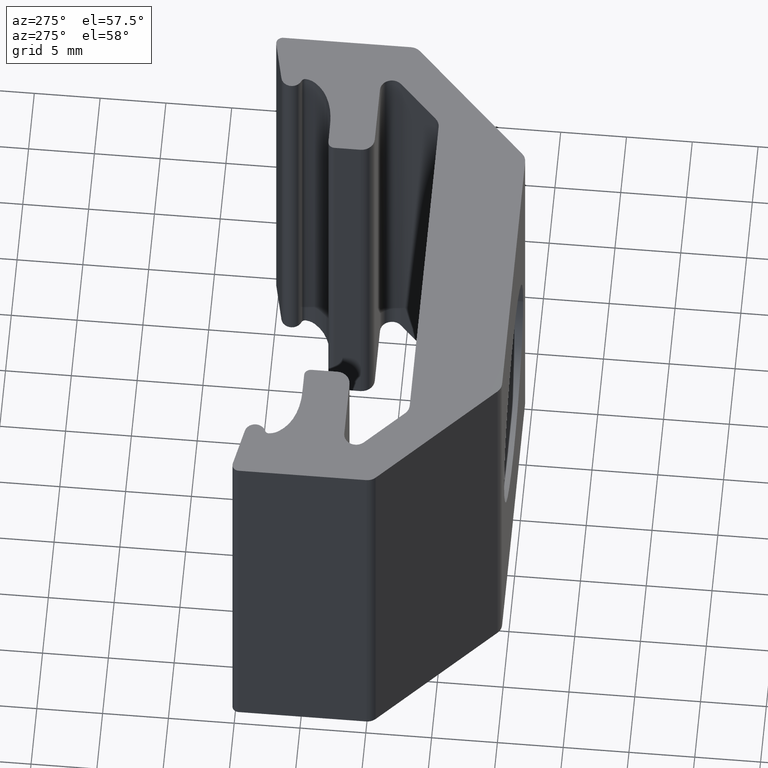
[diagram: clean part render]
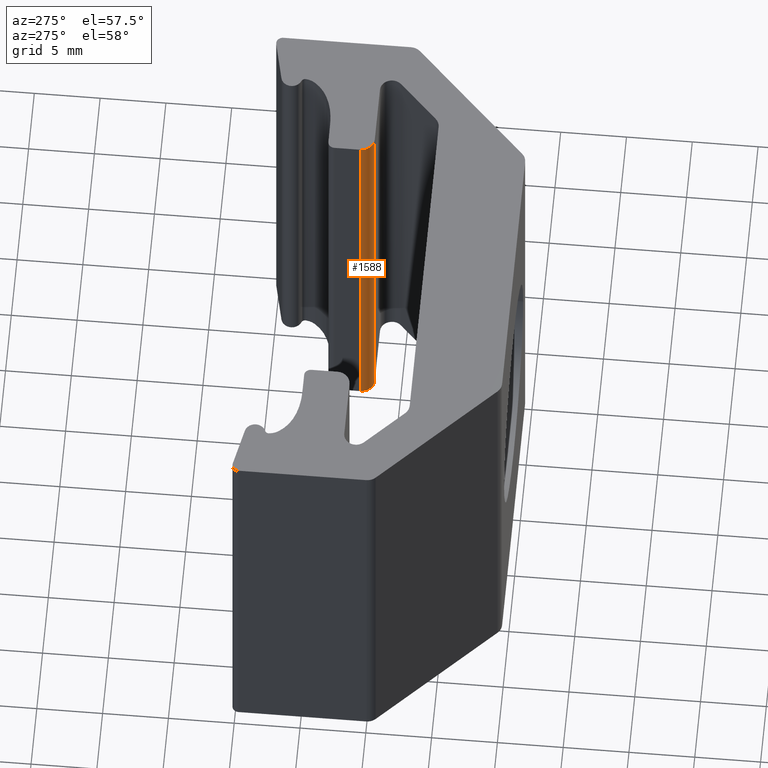
[diagram: same view with one face highlighted and labeled with its STEP entity id]
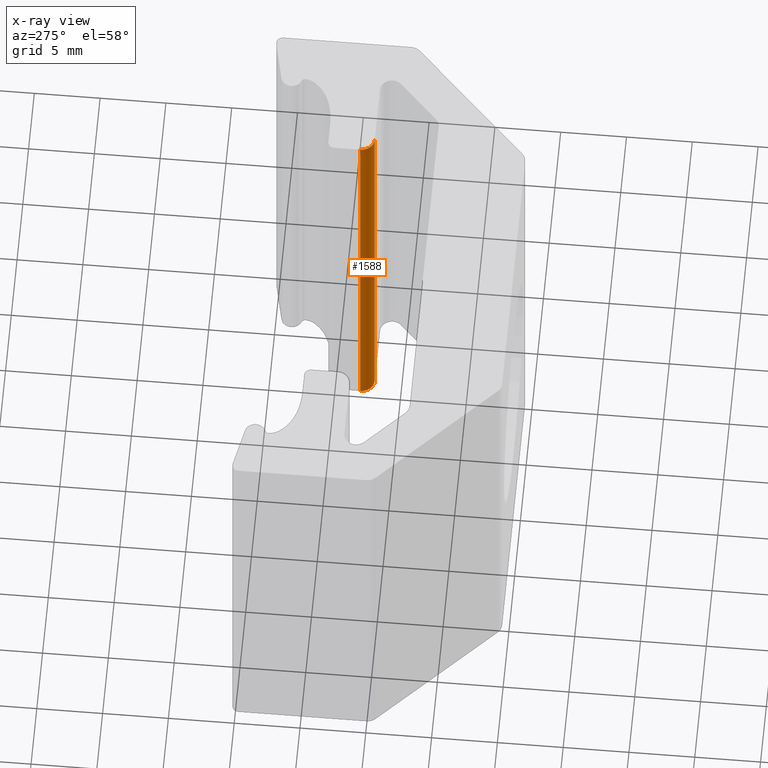
[diagram: x-ray of the same camera — body ghosted, the highlighted face saturated]
A machine part, auxiliary view. The second image highlights one B-rep face of the part: STEP entity #1588.
The next image is the same camera in x-ray: the body ghosted, the highlighted face saturated — about 0% of this face is hidden behind the body in this view.
In plain terms, the highlighted cylindrical surface (edge-blend (fillet) strip) has radius 1 mm, axis along (0, 0, 1).
Its self-contained STEP definition (entity closure, byte-faithful):
#34 = VERTEX_POINT ( 'NONE', #37 ) ;
#37 = CARTESIAN_POINT ( 'NONE',  ( 9.999999999997999822, 2.967902201490478564, 17.00000000000005684 ) ) ;
#46 = VECTOR ( 'NONE', #497, 1000.000000000000000 ) ;
#60 = CARTESIAN_POINT ( 'NONE',  ( 11.00000000001899991, 2.967902201490478564, -16.99999999999994671 ) ) ;
#70 = DIRECTION ( 'NONE',  ( 7.000000000000000347E-17, 1.580000000000000036E-15, 1.000000000000000000 ) ) ;
#203 = CARTESIAN_POINT ( 'NONE',  ( 9.999999999962998487, 2.967902201490478564, -16.99999999999994671 ) ) ;
#272 = CARTESIAN_POINT ( 'NONE',  ( 9.999999999962998487, 2.967902201490478564, 17.00000000000005684 ) ) ;
#299 = ORIENTED_EDGE ( 'NONE', *, *, #1349, .T. ) ;
#330 = DIRECTION ( 'NONE',  ( -1.000000000000000000, 0.000000000000000000, 0.000000000000000000 ) ) ;
#332 = ORIENTED_EDGE ( 'NONE', *, *, #523, .T. ) ;
#444 = ORIENTED_EDGE ( 'NONE', *, *, #1143, .T. ) ;
#454 = DIRECTION ( 'NONE',  ( 0.000000000000000000, -2.000000000000000155E-15, -1.000000000000000000 ) ) ;
#464 = CARTESIAN_POINT ( 'NONE',  ( 11.00000000001899991, 2.967902201490478564, 17.00000000000005684 ) ) ;
#495 = FACE_OUTER_BOUND ( 'NONE', #946, .T. ) ;
#497 = DIRECTION ( 'NONE',  ( 0.000000000000000000, 2.200000000000000003E-16, -1.000000000000000000 ) ) ;
#504 = DIRECTION ( 'NONE',  ( -1.000000000000000000, 0.000000000000000000, 0.000000000000000000 ) ) ;
#523 = EDGE_CURVE ( 'NONE', #1511, #34, #1598, .T. ) ;
#614 = EDGE_CURVE ( 'NONE', #1511, #1311, #929, .T. ) ;
#869 = CARTESIAN_POINT ( 'NONE',  ( 11.00000000001899991, 2.967902201490478564, 17.00000000000005684 ) ) ;
#896 = CIRCLE ( 'NONE', #1109, 0.9999999999999991118 ) ;
#922 = CARTESIAN_POINT ( 'NONE',  ( 11.00000000001899991, 1.967902201490477676, -16.99999999999994671 ) ) ;
#929 = LINE ( 'NONE', #1060, #1357 ) ;
#946 = EDGE_LOOP ( 'NONE', ( #444, #299, #1409, #332 ) ) ;
#995 = CYLINDRICAL_SURFACE ( 'NONE', #998, 0.9999999999999991118 ) ;
#998 = AXIS2_PLACEMENT_3D ( 'NONE', #869, #1381, #504 ) ;
#1060 = CARTESIAN_POINT ( 'NONE',  ( 11.00000000001899991, 1.967902201490477676, 17.00000000000005684 ) ) ;
#1109 = AXIS2_PLACEMENT_3D ( 'NONE', #60, #70, #330 ) ;
#1112 = CARTESIAN_POINT ( 'NONE',  ( 11.00000000001899991, 1.967902201490477676, 17.00000000000005684 ) ) ;
#1143 = EDGE_CURVE ( 'NONE', #34, #1620, #1629, .T. ) ;
#1311 = VERTEX_POINT ( 'NONE', #922 ) ;
#1349 = EDGE_CURVE ( 'NONE', #1620, #1311, #896, .T. ) ;
#1357 = VECTOR ( 'NONE', #1447, 1000.000000000000000 ) ;
#1381 = DIRECTION ( 'NONE',  ( 7.000000000000000347E-17, 1.580000000000000036E-15, 1.000000000000000000 ) ) ;
#1409 = ORIENTED_EDGE ( 'NONE', *, *, #614, .F. ) ;
#1447 = DIRECTION ( 'NONE',  ( -7.000000000000000347E-17, -1.580000000000000036E-15, -1.000000000000000000 ) ) ;
#1466 = AXIS2_PLACEMENT_3D ( 'NONE', #464, #454, #1597 ) ;
#1511 = VERTEX_POINT ( 'NONE', #1112 ) ;
#1588 = ADVANCED_FACE ( 'NONE', ( #495 ), #995, .T. ) ;
#1597 = DIRECTION ( 'NONE',  ( -1.000000000000000000, 0.000000000000000000, 0.000000000000000000 ) ) ;
#1598 = CIRCLE ( 'NONE', #1466, 0.9999999999999991118 ) ;
#1620 = VERTEX_POINT ( 'NONE', #203 ) ;
#1629 = LINE ( 'NONE', #272, #46 ) ;